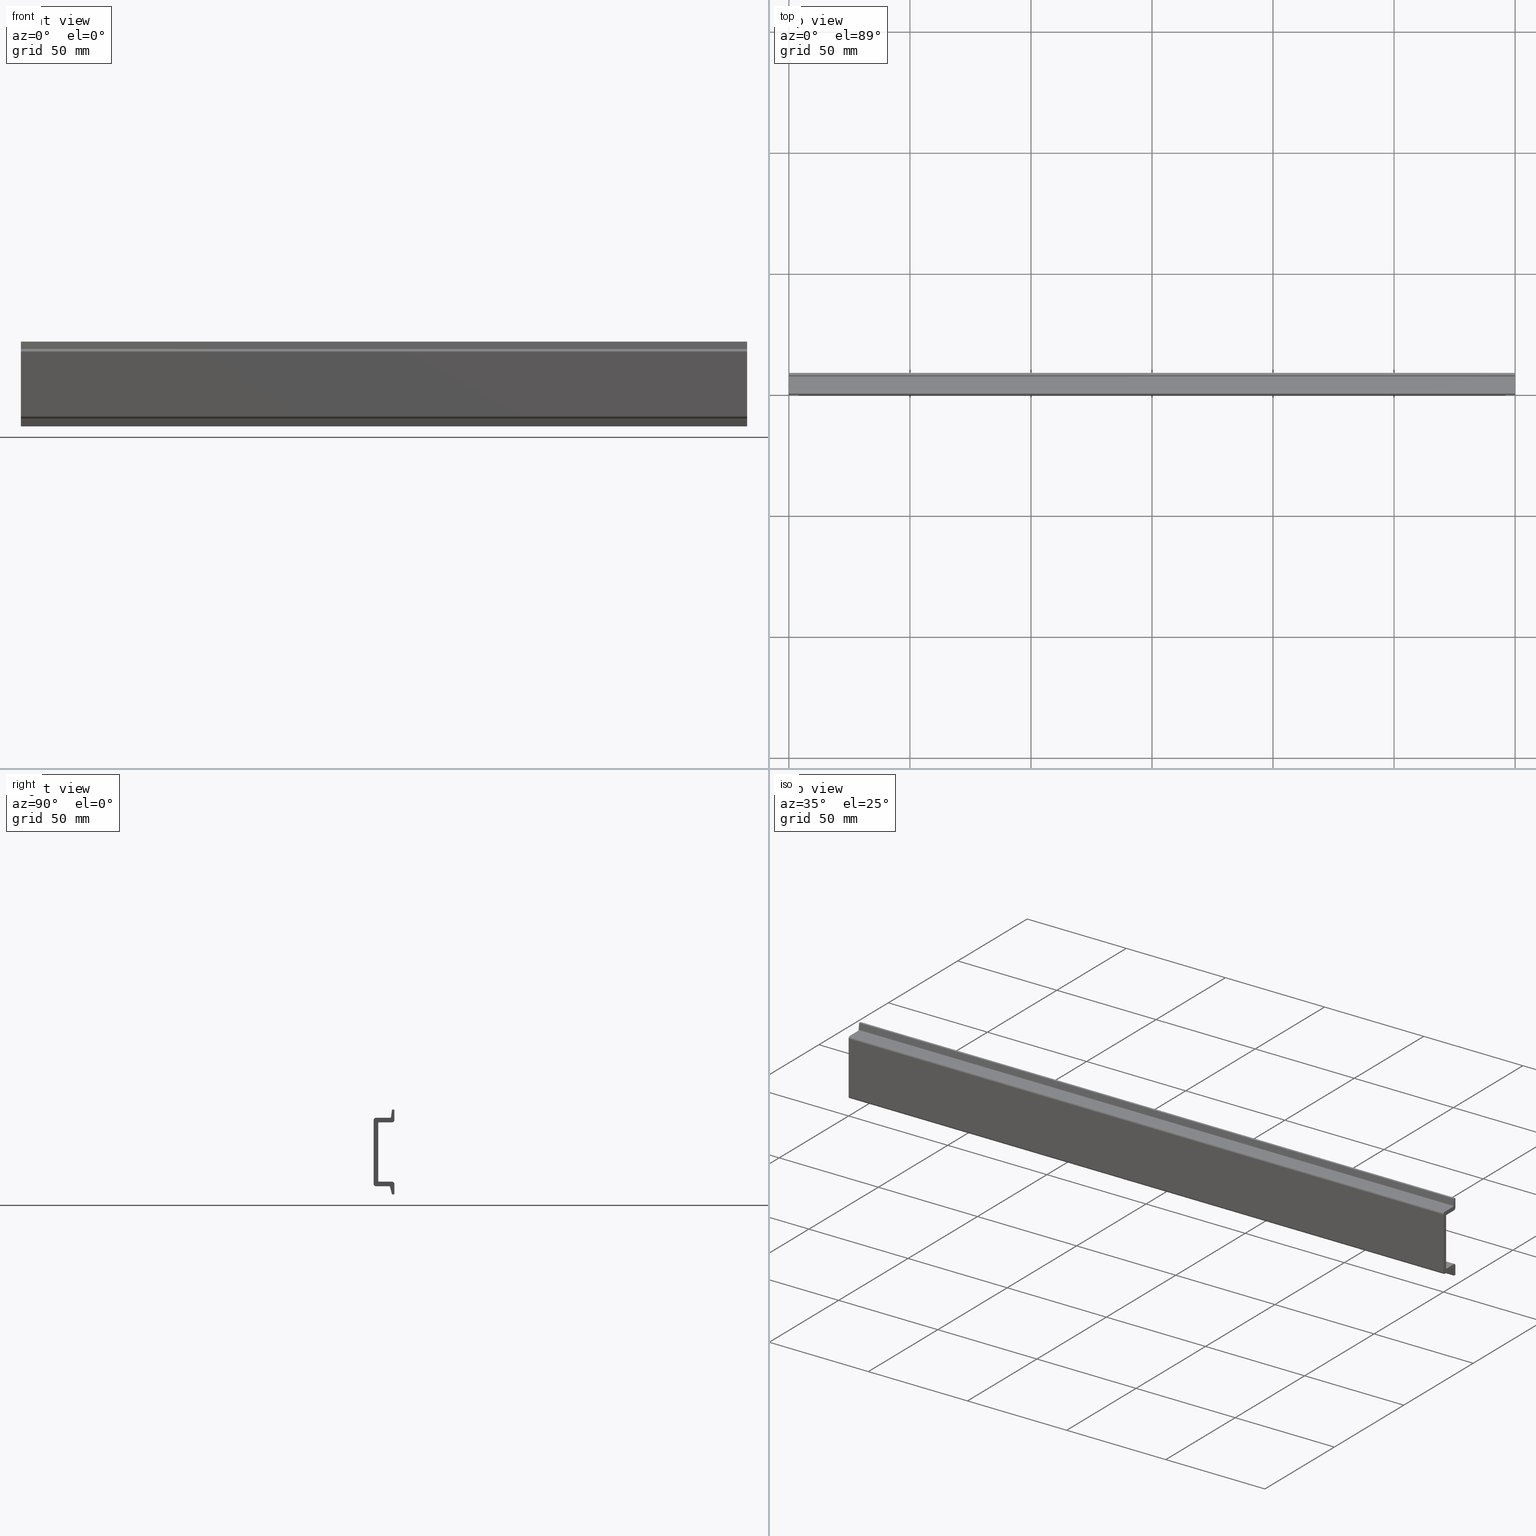
[diagram: canonical four-view strip — front | top / right | iso, engineering-drawing reading convention]
A machine part, canonical four-view strip (front | top / right | iso — engineering-drawing reading convention). The complete STEP part file that produces these views, byte-faithful:
ISO-10303-21;
HEADER;
FILE_DESCRIPTION (( 'STEP AP203' ),
    '1' );
FILE_NAME ('35x7,5 Al�minyum D�z Montaj Ray-30 cm.STEP',
    '2019-03-27T11:44:08',
    ( '' ),
    ( '' ),
    'SwSTEP 2.0',
    'SolidWorks 2011',
    '' );
FILE_SCHEMA (( 'CONFIG_CONTROL_DESIGN' ));
ENDSEC;

DATA;
#1 = PRODUCT ( '35x7,5 Al�minyum D�z Montaj Ray-30 cm', '35x7,5 Al�minyum D�z Montaj Ray-30 cm', '', ( #173 ) ) ;
#2 = APPLICATION_CONTEXT ( 'configuration controlled 3d designs of mechanical parts and assemblies' ) ;
#3 = APPLICATION_CONTEXT ( 'configuration controlled 3d designs of mechanical parts and assemblies' ) ;
#4 = UNCERTAINTY_MEASURE_WITH_UNIT (LENGTH_MEASURE( 1.000000000000000100E-005 ), #175, 'distance_accuracy_value', 'NONE');
#5 = MANIFOLD_SOLID_BREP ( 'Y�kseklik-Ekstr�zyon1', #668 ) ;
#6 = PRODUCT_DEFINITION_SHAPE ( 'NONE', 'NONE',  #54 ) ;
#7 = DESIGN_CONTEXT ( 'detailed design', #3, 'design' ) ;
#8 = EDGE_CURVE ( 'NONE', #206, #232, #247, .T. ) ;
#9 = EDGE_CURVE ( 'NONE', #232, #197, #406, .T. ) ;
#10 = EDGE_CURVE ( 'NONE', #204, #203, #412, .T. ) ;
#11 = EDGE_CURVE ( 'NONE', #231, #229, #374, .T. ) ;
#12 = EDGE_CURVE ( 'NONE', #217, #190, #393, .T. ) ;
#13 = EDGE_CURVE ( 'NONE', #228, #220, #399, .T. ) ;
#14 = EDGE_CURVE ( 'NONE', #204, #233, #671, .T. ) ;
#15 = EDGE_CURVE ( 'NONE', #238, #234, #381, .T. ) ;
#16 = EDGE_CURVE ( 'NONE', #198, #190, #372, .T. ) ;
#17 = EDGE_CURVE ( 'NONE', #238, #231, #388, .T. ) ;
#18 = EDGE_CURVE ( 'NONE', #234, #229, #377, .T. ) ;
#19 = EDGE_CURVE ( 'NONE', #216, #222, #395, .T. ) ;
#20 = EDGE_CURVE ( 'NONE', #198, #228, #389, .T. ) ;
#21 = EDGE_CURVE ( 'NONE', #233, #194, #366, .T. ) ;
#22 = EDGE_CURVE ( 'NONE', #206, #236, #417, .T. ) ;
#23 = EDGE_CURVE ( 'NONE', #191, #203, #413, .T. ) ;
#24 = EDGE_CURVE ( 'NONE', #222, #219, #396, .T. ) ;
#25 = EDGE_CURVE ( 'NONE', #219, #191, #717, .T. ) ;
#26 = EDGE_CURVE ( 'NONE', #202, #204, #458, .T. ) ;
#27 = EDGE_CURVE ( 'NONE', #192, #236, #452, .T. ) ;
#28 = EDGE_CURVE ( 'NONE', #202, #191, #414, .T. ) ;
#29 = EDGE_CURVE ( 'NONE', #197, #235, #726, .T. ) ;
#30 = EDGE_CURVE ( 'NONE', #227, #235, #435, .T. ) ;
#31 = EDGE_CURVE ( 'NONE', #205, #217, #416, .T. ) ;
#32 = EDGE_CURVE ( 'NONE', #222, #202, #719, .T. ) ;
#33 = EDGE_CURVE ( 'NONE', #235, #221, #428, .T. ) ;
#34 = ADVANCED_FACE ( 'NONE', ( #454 ), #419, .F. ) ;
#35 = EDGE_CURVE ( 'NONE', #194, #206, #424, .T. ) ;
#36 = EDGE_CURVE ( 'NONE', #205, #198, #433, .T. ) ;
#37 = ADVANCED_FACE ( 'NONE', ( #448 ), #492, .T. ) ;
#38 = EDGE_CURVE ( 'NONE', #231, #216, #731, .T. ) ;
#39 = EDGE_CURVE ( 'NONE', #236, #197, #503, .T. ) ;
#40 = EDGE_CURVE ( 'NONE', #228, #238, #682, .T. ) ;
#41 = EDGE_CURVE ( 'NONE', #190, #220, #459, .T. ) ;
#42 = EDGE_CURVE ( 'NONE', #194, #192, #491, .T. ) ;
#43 = EDGE_CURVE ( 'NONE', #229, #230, #732, .T. ) ;
#44 = EDGE_CURVE ( 'NONE', #230, #219, #465, .T. ) ;
#45 = ADVANCED_FACE ( 'NONE', ( #467 ), #473, .F. ) ;
#46 = EDGE_CURVE ( 'NONE', #218, #192, #480, .T. ) ;
#47 = ADVANCED_FACE ( 'NONE', ( #478 ), #481, .T. ) ;
#48 = EDGE_CURVE ( 'NONE', #220, #234, #684, .T. ) ;
#49 = EDGE_CURVE ( 'NONE', #216, #230, #477, .T. ) ;
#50 = EDGE_CURVE ( 'NONE', #232, #227, #688, .T. ) ;
#51 = EDGE_CURVE ( 'NONE', #233, #218, #484, .T. ) ;
#52 = ADVANCED_FACE ( 'NONE', ( #529 ), #506, .F. ) ;
#53 = EDGE_CURVE ( 'NONE', #203, #218, #704, .T. ) ;
#54 = PRODUCT_DEFINITION ( 'Bilinmeyen', '', #754, #7 ) ;
#55 = EDGE_CURVE ( 'NONE', #212, #224, #538, .T. ) ;
#56 = APPROVAL ( #179, 'BEL�RT�LMEM��' ) ;
#57 = EDGE_CURVE ( 'NONE', #207, #225, #507, .T. ) ;
#58 = CC_DESIGN_DATE_AND_TIME_ASSIGNMENT ( #172, #162, ( #54 ) ) ;
#59 = CC_DESIGN_PERSON_AND_ORGANIZATION_ASSIGNMENT ( #151, #152, ( #754 ) ) ;
#60 = EDGE_CURVE ( 'NONE', #211, #207, #527, .T. ) ;
#61 = EDGE_CURVE ( 'NONE', #224, #217, #521, .T. ) ;
#62 = ADVANCED_FACE ( 'NONE', ( #547 ), #526, .T. ) ;
#63 = EDGE_CURVE ( 'NONE', #212, #205, #550, .T. ) ;
#64 = ADVANCED_FACE ( 'NONE', ( #533 ), #552, .F. ) ;
#65 = ADVANCED_FACE ( 'NONE', ( #522 ), #516, .T. ) ;
#66 = ADVANCED_FACE ( 'NONE', ( #546 ), #543, .F. ) ;
#67 = EDGE_CURVE ( 'NONE', #237, #208, #553, .T. ) ;
#68 = EDGE_CURVE ( 'NONE', #213, #208, #574, .T. ) ;
#69 = ADVANCED_FACE ( 'NONE', ( #555 ), #554, .F. ) ;
#70 = ADVANCED_FACE ( 'NONE', ( #558 ), #576, .F. ) ;
#71 = ADVANCED_FACE ( 'NONE', ( #584 ), #579, .F. ) ;
#72 = ADVANCED_FACE ( 'NONE', ( #581 ), #577, .F. ) ;
#73 = EDGE_CURVE ( 'NONE', #209, #212, #768, .T. ) ;
#74 = ADVANCED_FACE ( 'NONE', ( #565 ), #556, .F. ) ;
#75 = EDGE_CURVE ( 'NONE', #213, #211, #764, .T. ) ;
#76 = EDGE_CURVE ( 'NONE', #211, #209, #594, .T. ) ;
#77 = ADVANCED_FACE ( 'NONE', ( #598 ), #560, .F. ) ;
#78 = CC_DESIGN_PERSON_AND_ORGANIZATION_ASSIGNMENT ( #156, #159, ( #1 ) ) ;
#79 = CC_DESIGN_PERSON_AND_ORGANIZATION_ASSIGNMENT ( #141, #169, ( #54 ) ) ;
#80 = EDGE_CURVE ( 'NONE', #225, #224, #739, .T. ) ;
#81 = EDGE_CURVE ( 'NONE', #210, #213, #643, .T. ) ;
#82 = EDGE_CURVE ( 'NONE', #227, #223, #641, .T. ) ;
#83 = ADVANCED_FACE ( 'NONE', ( #563 ), #627, .F. ) ;
#84 = EDGE_CURVE ( 'NONE', #209, #225, #624, .T. ) ;
#85 = APPROVAL ( #143, 'BEL�RT�LMEM��' ) ;
#86 = CC_DESIGN_PERSON_AND_ORGANIZATION_ASSIGNMENT ( #149, #150, ( #754 ) ) ;
#87 = ADVANCED_FACE ( 'NONE', ( #626 ), #625, .F. ) ;
#88 = EDGE_CURVE ( 'NONE', #210, #237, #619, .T. ) ;
#89 = ADVANCED_FACE ( 'NONE', ( #611 ), #605, .T. ) ;
#90 = EDGE_CURVE ( 'NONE', #223, #221, #603, .T. ) ;
#91 = EDGE_CURVE ( 'NONE', #221, #237, #763, .T. ) ;
#92 = ADVANCED_FACE ( 'NONE', ( #650 ), #630, .F. ) ;
#93 = ADVANCED_FACE ( 'NONE', ( #632 ), #601, .F. ) ;
#94 = ADVANCED_FACE ( 'NONE', ( #610 ), #615, .F. ) ;
#95 = ADVANCED_FACE ( 'NONE', ( #618 ), #651, .F. ) ;
#96 = EDGE_CURVE ( 'NONE', #223, #210, #760, .T. ) ;
#97 = EDGE_CURVE ( 'NONE', #208, #207, #756, .T. ) ;
#98 = CC_DESIGN_DATE_AND_TIME_ASSIGNMENT ( #185, #187, ( #748 ) ) ;
#99 = CC_DESIGN_PERSON_AND_ORGANIZATION_ASSIGNMENT ( #154, #161, ( #748 ) ) ;
#100 = PRODUCT_RELATED_PRODUCT_CATEGORY ( 'detail', '', ( #1 ) ) ;
#101 = APPROVAL ( #188, 'BEL�RT�LMEM��' ) ;
#102 = CARTESIAN_POINT ( 'NONE',  ( 0.0000000000000000000, 7.599999999999829100, -4.350000000000076000 ) ) ;
#103 = CARTESIAN_POINT ( 'NONE',  ( 300.0000000000000000, -1.110223024625156500E-013, 26.29999999999999000 ) ) ;
#104 = CARTESIAN_POINT ( 'NONE',  ( 300.0000000000000000, 8.599999999999496900, 30.64999999999984200 ) ) ;
#105 = CARTESIAN_POINT ( 'NONE',  ( 300.0000000000000000, 8.599999999999496900, 26.39999999999975700 ) ) ;
#106 = CARTESIAN_POINT ( 'NONE',  ( 0.0000000000000000000, 8.599999999999496900, 30.64999999999984200 ) ) ;
#107 = CARTESIAN_POINT ( 'NONE',  ( 0.0000000000000000000, 2.199999999999979700, 0.8999999999998453700 ) ) ;
#108 = CARTESIAN_POINT ( 'NONE',  ( 0.0000000000000000000, 8.599999999999663900, -0.1000000000002111000 ) ) ;
#109 = CARTESIAN_POINT ( 'NONE',  ( 300.0000000000000000, 1.899999999999901800, 25.09999999999967800 ) ) ;
#110 = CARTESIAN_POINT ( 'NONE',  ( 300.0000000000000000, -5.551115123125782700E-014, 1.836970198720929400E-016 ) ) ;
#111 = CARTESIAN_POINT ( 'NONE',  ( 0.0000000000000000000, 8.599999999999496900, 26.39999999999975700 ) ) ;
#112 = CARTESIAN_POINT ( 'NONE',  ( 300.0000000000000000, 7.599999999999607100, 0.8999999999999008800 ) ) ;
#113 = CARTESIAN_POINT ( 'NONE',  ( 300.0000000000000000, 7.227162839129873900, 27.73653245076380400 ) ) ;
#114 = CARTESIAN_POINT ( 'NONE',  ( 0.0000000000000000000, 0.9999999999998900900, 27.29999999999993700 ) ) ;
#115 = CARTESIAN_POINT ( 'NONE',  ( 0.0000000000000000000, -1.110223024625156500E-013, 26.29999999999999000 ) ) ;
#116 = CARTESIAN_POINT ( 'NONE',  ( 300.0000000000000000, 8.599999999999663900, -0.1000000000002111000 ) ) ;
#117 = CARTESIAN_POINT ( 'NONE',  ( 300.0000000000000000, 8.599999999999607100, -4.350000000000076000 ) ) ;
#118 = CARTESIAN_POINT ( 'NONE',  ( 0.0000000000000000000, 7.227162839129873900, 27.73653245076380400 ) ) ;
#119 = CARTESIAN_POINT ( 'NONE',  ( 0.0000000000000000000, 7.599999999999496000, 25.39999999999981000 ) ) ;
#120 = CARTESIAN_POINT ( 'NONE',  ( 300.0000000000000000, 6.784593068918543000, -1.224273430855515900 ) ) ;
#121 = CARTESIAN_POINT ( 'NONE',  ( 300.0000000000000000, 1.899999999999901800, 1.199999999999867800 ) ) ;
#122 = CARTESIAN_POINT ( 'NONE',  ( 300.0000000000000000, 2.199999999999868700, 25.39999999999986700 ) ) ;
#123 = CARTESIAN_POINT ( 'NONE',  ( 0.0000000000000000000, 6.731207326816646100, 27.29999999999988000 ) ) ;
#124 = CARTESIAN_POINT ( 'NONE',  ( 0.0000000000000000000, 7.599999999999607100, 0.8999999999999008800 ) ) ;
#125 = CARTESIAN_POINT ( 'NONE',  ( 300.0000000000000000, 0.9999999999998900900, 27.29999999999993700 ) ) ;
#126 = CARTESIAN_POINT ( 'NONE',  ( 0.0000000000000000000, 2.199999999999868700, 25.39999999999986700 ) ) ;
#127 = CARTESIAN_POINT ( 'NONE',  ( 0.0000000000000000000, 8.599999999999607100, -4.350000000000076000 ) ) ;
#128 = CARTESIAN_POINT ( 'NONE',  ( 0.0000000000000000000, 1.899999999999901800, 1.199999999999867800 ) ) ;
#129 = DIRECTION ( 'NONE',  ( 0.0000000000000000000, 0.0000000000000000000, -1.000000000000000000 ) ) ;
#130 = CARTESIAN_POINT ( 'NONE',  ( 300.0000000000000000, 6.731207326816646100, 27.29999999999988000 ) ) ;
#131 = CARTESIAN_POINT ( 'NONE',  ( 0.0000000000000000000, 0.0000000000000000000, 0.0000000000000000000 ) ) ;
#132 = CARTESIAN_POINT ( 'NONE',  ( 0.0000000000000000000, 6.784593068918543000, -1.224273430855515900 ) ) ;
#133 = CARTESIAN_POINT ( 'NONE',  ( 300.0000000000000000, 2.199999999999979700, 0.8999999999998453700 ) ) ;
#134 = DIRECTION ( 'NONE',  ( -1.000000000000000000, -0.0000000000000000000, -0.0000000000000000000 ) ) ;
#135 = CARTESIAN_POINT ( 'NONE',  ( 300.0000000000000000, 0.9999999999998898700, -0.9999999999998898700 ) ) ;
#136 = CARTESIAN_POINT ( 'NONE',  ( 300.0000000000000000, 6.494307887199402000, -0.9999999999997712900 ) ) ;
#137 = CARTESIAN_POINT ( 'NONE',  ( 300.0000000000000000, 7.599999999999496000, 25.39999999999981000 ) ) ;
#138 = CARTESIAN_POINT ( 'NONE',  ( 0.0000000000000000000, 1.899999999999901800, 25.09999999999967800 ) ) ;
#139 = CARTESIAN_POINT ( 'NONE',  ( 0.0000000000000000000, -5.551115123125782700E-014, 1.836970198720929400E-016 ) ) ;
#140 = CALENDAR_DATE ( 2019, 27, 3 ) ;
#141 = PERSON_AND_ORGANIZATION ( #664, #740 ) ;
#142 = CALENDAR_DATE ( 2019, 27, 3 ) ;
#143 = APPROVAL_STATUS ( 'not_yet_approved' ) ;
#144 = COORDINATED_UNIVERSAL_TIME_OFFSET ( 3, 0, .AHEAD. ) ;
#145 = APPROVAL_DATE_TIME ( #158, #56 ) ;
#146 = APPROVAL_ROLE ( '' ) ;
#147 = CALENDAR_DATE ( 2019, 27, 3 ) ;
#148 = APPROVAL_DATE_TIME ( #171, #85 ) ;
#149 = PERSON_AND_ORGANIZATION ( #664, #740 ) ;
#150 = PERSON_AND_ORGANIZATION_ROLE ( 'creator' ) ;
#151 = PERSON_AND_ORGANIZATION ( #664, #740 ) ;
#152 = PERSON_AND_ORGANIZATION_ROLE ( 'design_supplier' ) ;
#153 = SECURITY_CLASSIFICATION_LEVEL ( 'unclassified' ) ;
#154 = PERSON_AND_ORGANIZATION ( #664, #740 ) ;
#155 = COORDINATED_UNIVERSAL_TIME_OFFSET ( 3, 0, .AHEAD. ) ;
#156 = PERSON_AND_ORGANIZATION ( #664, #740 ) ;
#157 = PERSON_AND_ORGANIZATION ( #664, #740 ) ;
#158 = DATE_AND_TIME ( #142, #744 ) ;
#159 = PERSON_AND_ORGANIZATION_ROLE ( 'design_owner' ) ;
#160 = COORDINATED_UNIVERSAL_TIME_OFFSET ( 3, 0, .AHEAD. ) ;
#161 = PERSON_AND_ORGANIZATION_ROLE ( 'classification_officer' ) ;
#162 = DATE_TIME_ROLE ( 'creation_date' ) ;
#163 = COORDINATED_UNIVERSAL_TIME_OFFSET ( 3, 0, .AHEAD. ) ;
#164 = PERSON_AND_ORGANIZATION ( #664, #740 ) ;
#165 = CALENDAR_DATE ( 2019, 27, 3 ) ;
#166 = APPROVAL_ROLE ( '' ) ;
#167 = APPLICATION_PROTOCOL_DEFINITION ( 'international standard', 'config_control_design', 1994, #3 ) ;
#168 = DIRECTION ( 'NONE',  ( 1.000000000000000000, 0.0000000000000000000, 0.0000000000000000000 ) ) ;
#169 = PERSON_AND_ORGANIZATION_ROLE ( 'creator' ) ;
#170 =( NAMED_UNIT ( * ) SI_UNIT ( $, .STERADIAN. ) SOLID_ANGLE_UNIT ( ) );
#171 = DATE_AND_TIME ( #147, #766 ) ;
#172 = DATE_AND_TIME ( #140, #758 ) ;
#173 = MECHANICAL_CONTEXT ( 'NONE', #2, 'mechanical' ) ;
#174 =( NAMED_UNIT ( * ) PLANE_ANGLE_UNIT ( ) SI_UNIT ( $, .RADIAN. ) );
#175 =( LENGTH_UNIT ( ) NAMED_UNIT ( * ) SI_UNIT ( .MILLI., .METRE. ) );
#176 = DIRECTION ( 'NONE',  ( 0.0000000000000000000, 0.0000000000000000000, 1.000000000000000000 ) ) ;
#177 = SHAPE_DEFINITION_REPRESENTATION ( #6, #665 ) ;
#178 = APPLICATION_PROTOCOL_DEFINITION ( 'international standard', 'config_control_design', 1994, #2 ) ;
#179 = APPROVAL_STATUS ( 'not_yet_approved' ) ;
#180 = APPROVAL_ROLE ( '' ) ;
#181 = PERSON_AND_ORGANIZATION ( #664, #740 ) ;
#182 = DATE_AND_TIME ( #183, #750 ) ;
#183 = CALENDAR_DATE ( 2019, 27, 3 ) ;
#184 = COORDINATED_UNIVERSAL_TIME_OFFSET ( 3, 0, .AHEAD. ) ;
#185 = DATE_AND_TIME ( #165, #761 ) ;
#186 = APPROVAL_DATE_TIME ( #182, #101 ) ;
#187 = DATE_TIME_ROLE ( 'classification_date' ) ;
#188 = APPROVAL_STATUS ( 'not_yet_approved' ) ;
#189 = EDGE_LOOP ( 'NONE', ( #298, #280, #268, #272 ) ) ;
#190 = VERTEX_POINT ( 'NONE', #661 ) ;
#191 = VERTEX_POINT ( 'NONE', #663 ) ;
#192 = VERTEX_POINT ( 'NONE', #102 ) ;
#193 = EDGE_LOOP ( 'NONE', ( #250, #293, #299, #239 ) ) ;
#194 = VERTEX_POINT ( 'NONE', #655 ) ;
#195 = EDGE_LOOP ( 'NONE', ( #278, #248, #259, #270 ) ) ;
#196 = EDGE_LOOP ( 'NONE', ( #267, #254, #287, #261 ) ) ;
#197 = VERTEX_POINT ( 'NONE', #108 ) ;
#198 = VERTEX_POINT ( 'NONE', #658 ) ;
#199 = EDGE_LOOP ( 'NONE', ( #279, #353, #253, #341 ) ) ;
#200 = EDGE_LOOP ( 'NONE', ( #269, #271, #289, #255 ) ) ;
#201 = EDGE_LOOP ( 'NONE', ( #252, #316, #365, #364 ) ) ;
#202 = VERTEX_POINT ( 'NONE', #135 ) ;
#203 = VERTEX_POINT ( 'NONE', #662 ) ;
#204 = VERTEX_POINT ( 'NONE', #136 ) ;
#205 = VERTEX_POINT ( 'NONE', #104 ) ;
#206 = VERTEX_POINT ( 'NONE', #117 ) ;
#207 = VERTEX_POINT ( 'NONE', #126 ) ;
#208 = VERTEX_POINT ( 'NONE', #138 ) ;
#209 = VERTEX_POINT ( 'NONE', #137 ) ;
#210 = VERTEX_POINT ( 'NONE', #121 ) ;
#211 = VERTEX_POINT ( 'NONE', #122 ) ;
#212 = VERTEX_POINT ( 'NONE', #105 ) ;
#213 = VERTEX_POINT ( 'NONE', #109 ) ;
#214 = EDGE_LOOP ( 'NONE', ( #304, #327, #303, #256 ) ) ;
#215 = EDGE_LOOP ( 'NONE', ( #358, #257, #308, #251 ) ) ;
#216 = VERTEX_POINT ( 'NONE', #103 ) ;
#217 = VERTEX_POINT ( 'NONE', #106 ) ;
#218 = VERTEX_POINT ( 'NONE', #132 ) ;
#219 = VERTEX_POINT ( 'NONE', #139 ) ;
#220 = VERTEX_POINT ( 'NONE', #118 ) ;
#221 = VERTEX_POINT ( 'NONE', #107 ) ;
#222 = VERTEX_POINT ( 'NONE', #110 ) ;
#223 = VERTEX_POINT ( 'NONE', #133 ) ;
#224 = VERTEX_POINT ( 'NONE', #111 ) ;
#225 = VERTEX_POINT ( 'NONE', #119 ) ;
#226 = EDGE_LOOP ( 'NONE', ( #241, #290, #249, #266 ) ) ;
#227 = VERTEX_POINT ( 'NONE', #112 ) ;
#228 = VERTEX_POINT ( 'NONE', #113 ) ;
#229 = VERTEX_POINT ( 'NONE', #114 ) ;
#230 = VERTEX_POINT ( 'NONE', #115 ) ;
#231 = VERTEX_POINT ( 'NONE', #125 ) ;
#232 = VERTEX_POINT ( 'NONE', #116 ) ;
#233 = VERTEX_POINT ( 'NONE', #120 ) ;
#234 = VERTEX_POINT ( 'NONE', #123 ) ;
#235 = VERTEX_POINT ( 'NONE', #124 ) ;
#236 = VERTEX_POINT ( 'NONE', #127 ) ;
#237 = VERTEX_POINT ( 'NONE', #128 ) ;
#238 = VERTEX_POINT ( 'NONE', #130 ) ;
#239 = ORIENTED_EDGE ( 'NONE', *, *, #15, .T. ) ;
#240 = EDGE_LOOP ( 'NONE', ( #306, #275, #277, #295 ) ) ;
#241 = ORIENTED_EDGE ( 'NONE', *, *, #48, .T. ) ;
#242 = EDGE_LOOP ( 'NONE', ( #363, #300, #263, #294 ) ) ;
#243 = EDGE_LOOP ( 'NONE', ( #344, #349, #324, #403, #326, #343, #355, #337, #314, #318, #354, #352, #367, #351, #332, #338, #329, #334, #340, #325 ) ) ;
#244 = EDGE_LOOP ( 'NONE', ( #284, #285, #281, #331 ) ) ;
#245 = EDGE_LOOP ( 'NONE', ( #317, #273, #276, #274 ) ) ;
#246 = CARTESIAN_POINT ( 'NONE',  ( 300.0000000000000000, 8.599999999999607100, -0.1000000000002110300 ) ) ;
#247 = LINE ( 'NONE', #246, #670 ) ;
#248 = ORIENTED_EDGE ( 'NONE', *, *, #16, .F. ) ;
#249 = ORIENTED_EDGE ( 'NONE', *, *, #40, .F. ) ;
#250 = ORIENTED_EDGE ( 'NONE', *, *, #18, .T. ) ;
#251 = ORIENTED_EDGE ( 'NONE', *, *, #10, .T. ) ;
#252 = ORIENTED_EDGE ( 'NONE', *, *, #80, .T. ) ;
#253 = ORIENTED_EDGE ( 'NONE', *, *, #32, .F. ) ;
#254 = ORIENTED_EDGE ( 'NONE', *, *, #13, .F. ) ;
#255 = ORIENTED_EDGE ( 'NONE', *, *, #11, .T. ) ;
#256 = ORIENTED_EDGE ( 'NONE', *, *, #28, .T. ) ;
#257 = ORIENTED_EDGE ( 'NONE', *, *, #51, .F. ) ;
#258 = ORIENTED_EDGE ( 'NONE', *, *, #60, .T. ) ;
#259 = ORIENTED_EDGE ( 'NONE', *, *, #36, .F. ) ;
#260 = ORIENTED_EDGE ( 'NONE', *, *, #42, .F. ) ;
#261 = ORIENTED_EDGE ( 'NONE', *, *, #16, .T. ) ;
#262 = ORIENTED_EDGE ( 'NONE', *, *, #90, .F. ) ;
#263 = ORIENTED_EDGE ( 'NONE', *, *, #96, .F. ) ;
#264 = ORIENTED_EDGE ( 'NONE', *, *, #50, .F. ) ;
#265 = DIRECTION ( 'NONE',  ( -0.0000000000000000000, -0.0000000000000000000, 1.000000000000000000 ) ) ;
#266 = ORIENTED_EDGE ( 'NONE', *, *, #13, .T. ) ;
#267 = ORIENTED_EDGE ( 'NONE', *, *, #41, .T. ) ;
#268 = ORIENTED_EDGE ( 'NONE', *, *, #19, .F. ) ;
#269 = ORIENTED_EDGE ( 'NONE', *, *, #43, .T. ) ;
#270 = ORIENTED_EDGE ( 'NONE', *, *, #31, .T. ) ;
#271 = ORIENTED_EDGE ( 'NONE', *, *, #49, .F. ) ;
#272 = ORIENTED_EDGE ( 'NONE', *, *, #49, .T. ) ;
#273 = ORIENTED_EDGE ( 'NONE', *, *, #9, .F. ) ;
#274 = ORIENTED_EDGE ( 'NONE', *, *, #22, .T. ) ;
#275 = ORIENTED_EDGE ( 'NONE', *, *, #60, .F. ) ;
#276 = ORIENTED_EDGE ( 'NONE', *, *, #8, .F. ) ;
#277 = ORIENTED_EDGE ( 'NONE', *, *, #75, .F. ) ;
#278 = ORIENTED_EDGE ( 'NONE', *, *, #12, .T. ) ;
#279 = ORIENTED_EDGE ( 'NONE', *, *, #25, .T. ) ;
#280 = ORIENTED_EDGE ( 'NONE', *, *, #24, .F. ) ;
#281 = ORIENTED_EDGE ( 'NONE', *, *, #81, .F. ) ;
#282 = EDGE_LOOP ( 'NONE', ( #360, #361, #264, #286 ) ) ;
#283 = EDGE_LOOP ( 'NONE', ( #321, #262, #313, #288 ) ) ;
#284 = ORIENTED_EDGE ( 'NONE', *, *, #67, .T. ) ;
#285 = ORIENTED_EDGE ( 'NONE', *, *, #68, .F. ) ;
#286 = ORIENTED_EDGE ( 'NONE', *, *, #9, .T. ) ;
#287 = ORIENTED_EDGE ( 'NONE', *, *, #20, .F. ) ;
#288 = ORIENTED_EDGE ( 'NONE', *, *, #30, .T. ) ;
#289 = ORIENTED_EDGE ( 'NONE', *, *, #38, .F. ) ;
#290 = ORIENTED_EDGE ( 'NONE', *, *, #15, .F. ) ;
#291 = EDGE_LOOP ( 'NONE', ( #347, #260, #357, #350 ) ) ;
#292 = EDGE_LOOP ( 'NONE', ( #359, #307, #302, #322 ) ) ;
#293 = ORIENTED_EDGE ( 'NONE', *, *, #11, .F. ) ;
#294 = ORIENTED_EDGE ( 'NONE', *, *, #90, .T. ) ;
#295 = ORIENTED_EDGE ( 'NONE', *, *, #68, .T. ) ;
#296 = EDGE_LOOP ( 'NONE', ( #319, #348, #342, #258 ) ) ;
#297 = EDGE_LOOP ( 'NONE', ( #328, #305, #335, #309 ) ) ;
#298 = ORIENTED_EDGE ( 'NONE', *, *, #44, .T. ) ;
#299 = ORIENTED_EDGE ( 'NONE', *, *, #17, .F. ) ;
#300 = ORIENTED_EDGE ( 'NONE', *, *, #88, .F. ) ;
#301 = EDGE_LOOP ( 'NONE', ( #315, #310, #362, #311, #345, #312, #320, #336, #330, #339, #380, #390, #410, #323, #333, #384, #356, #346, #368, #401 ) ) ;
#302 = ORIENTED_EDGE ( 'NONE', *, *, #35, .F. ) ;
#303 = ORIENTED_EDGE ( 'NONE', *, *, #26, .F. ) ;
#304 = ORIENTED_EDGE ( 'NONE', *, *, #23, .T. ) ;
#305 = ORIENTED_EDGE ( 'NONE', *, *, #31, .F. ) ;
#306 = ORIENTED_EDGE ( 'NONE', *, *, #97, .T. ) ;
#307 = ORIENTED_EDGE ( 'NONE', *, *, #22, .F. ) ;
#308 = ORIENTED_EDGE ( 'NONE', *, *, #14, .F. ) ;
#309 = ORIENTED_EDGE ( 'NONE', *, *, #55, .T. ) ;
#310 = ORIENTED_EDGE ( 'NONE', *, *, #20, .T. ) ;
#311 = ORIENTED_EDGE ( 'NONE', *, *, #17, .T. ) ;
#312 = ORIENTED_EDGE ( 'NONE', *, *, #19, .T. ) ;
#313 = ORIENTED_EDGE ( 'NONE', *, *, #82, .F. ) ;
#314 = ORIENTED_EDGE ( 'NONE', *, *, #29, .F. ) ;
#315 = ORIENTED_EDGE ( 'NONE', *, *, #36, .T. ) ;
#316 = ORIENTED_EDGE ( 'NONE', *, *, #55, .F. ) ;
#317 = ORIENTED_EDGE ( 'NONE', *, *, #39, .T. ) ;
#318 = ORIENTED_EDGE ( 'NONE', *, *, #39, .F. ) ;
#319 = ORIENTED_EDGE ( 'NONE', *, *, #57, .T. ) ;
#320 = ORIENTED_EDGE ( 'NONE', *, *, #32, .T. ) ;
#321 = ORIENTED_EDGE ( 'NONE', *, *, #33, .T. ) ;
#322 = ORIENTED_EDGE ( 'NONE', *, *, #42, .T. ) ;
#323 = ORIENTED_EDGE ( 'NONE', *, *, #82, .T. ) ;
#324 = ORIENTED_EDGE ( 'NONE', *, *, #80, .F. ) ;
#325 = ORIENTED_EDGE ( 'NONE', *, *, #41, .F. ) ;
#326 = ORIENTED_EDGE ( 'NONE', *, *, #97, .F. ) ;
#327 = ORIENTED_EDGE ( 'NONE', *, *, #10, .F. ) ;
#328 = ORIENTED_EDGE ( 'NONE', *, *, #61, .T. ) ;
#329 = ORIENTED_EDGE ( 'NONE', *, *, #43, .F. ) ;
#330 = ORIENTED_EDGE ( 'NONE', *, *, #14, .T. ) ;
#331 = ORIENTED_EDGE ( 'NONE', *, *, #88, .T. ) ;
#332 = ORIENTED_EDGE ( 'NONE', *, *, #25, .F. ) ;
#333 = ORIENTED_EDGE ( 'NONE', *, *, #96, .T. ) ;
#334 = ORIENTED_EDGE ( 'NONE', *, *, #18, .F. ) ;
#335 = ORIENTED_EDGE ( 'NONE', *, *, #63, .F. ) ;
#336 = ORIENTED_EDGE ( 'NONE', *, *, #26, .T. ) ;
#337 = ORIENTED_EDGE ( 'NONE', *, *, #33, .F. ) ;
#338 = ORIENTED_EDGE ( 'NONE', *, *, #44, .F. ) ;
#339 = ORIENTED_EDGE ( 'NONE', *, *, #21, .T. ) ;
#340 = ORIENTED_EDGE ( 'NONE', *, *, #48, .F. ) ;
#341 = ORIENTED_EDGE ( 'NONE', *, *, #24, .T. ) ;
#342 = ORIENTED_EDGE ( 'NONE', *, *, #76, .F. ) ;
#343 = ORIENTED_EDGE ( 'NONE', *, *, #67, .F. ) ;
#344 = ORIENTED_EDGE ( 'NONE', *, *, #12, .F. ) ;
#345 = ORIENTED_EDGE ( 'NONE', *, *, #38, .T. ) ;
#346 = ORIENTED_EDGE ( 'NONE', *, *, #76, .T. ) ;
#347 = ORIENTED_EDGE ( 'NONE', *, *, #46, .T. ) ;
#348 = ORIENTED_EDGE ( 'NONE', *, *, #84, .F. ) ;
#349 = ORIENTED_EDGE ( 'NONE', *, *, #61, .F. ) ;
#350 = ORIENTED_EDGE ( 'NONE', *, *, #51, .T. ) ;
#351 = ORIENTED_EDGE ( 'NONE', *, *, #23, .F. ) ;
#352 = ORIENTED_EDGE ( 'NONE', *, *, #46, .F. ) ;
#353 = ORIENTED_EDGE ( 'NONE', *, *, #28, .F. ) ;
#354 = ORIENTED_EDGE ( 'NONE', *, *, #27, .F. ) ;
#355 = ORIENTED_EDGE ( 'NONE', *, *, #91, .F. ) ;
#356 = ORIENTED_EDGE ( 'NONE', *, *, #75, .T. ) ;
#357 = ORIENTED_EDGE ( 'NONE', *, *, #21, .F. ) ;
#358 = ORIENTED_EDGE ( 'NONE', *, *, #53, .T. ) ;
#359 = ORIENTED_EDGE ( 'NONE', *, *, #27, .T. ) ;
#360 = ORIENTED_EDGE ( 'NONE', *, *, #29, .T. ) ;
#361 = ORIENTED_EDGE ( 'NONE', *, *, #30, .F. ) ;
#362 = ORIENTED_EDGE ( 'NONE', *, *, #40, .T. ) ;
#363 = ORIENTED_EDGE ( 'NONE', *, *, #91, .T. ) ;
#364 = ORIENTED_EDGE ( 'NONE', *, *, #84, .T. ) ;
#365 = ORIENTED_EDGE ( 'NONE', *, *, #73, .F. ) ;
#366 = LINE ( 'NONE', #404, #724 ) ;
#367 = ORIENTED_EDGE ( 'NONE', *, *, #53, .F. ) ;
#368 = ORIENTED_EDGE ( 'NONE', *, *, #73, .T. ) ;
#369 = CARTESIAN_POINT ( 'NONE',  ( 300.0000000000000000, 8.599999999999663900, -0.1000000000002111000 ) ) ;
#370 = DIRECTION ( 'NONE',  ( -1.000000000000000000, -0.0000000000000000000, -0.0000000000000000000 ) ) ;
#371 = CARTESIAN_POINT ( 'NONE',  ( 300.0000000000000000, 6.494307887199513000, -1.299999999999634800 ) ) ;
#372 = LINE ( 'NONE', #383, #705 ) ;
#373 = DIRECTION ( 'NONE',  ( -1.000000000000000000, -0.0000000000000000000, -0.0000000000000000000 ) ) ;
#374 = LINE ( 'NONE', #392, #673 ) ;
#375 = CARTESIAN_POINT ( 'NONE',  ( 300.0000000000000000, 6.731207326816646100, 27.29999999999988000 ) ) ;
#376 = CARTESIAN_POINT ( 'NONE',  ( 300.0000000000000000, 6.731207326816646100, 27.29999999999988000 ) ) ;
#377 = LINE ( 'NONE', #411, #689 ) ;
#378 = DIRECTION ( 'NONE',  ( -1.000000000000000000, -0.0000000000000000000, -0.0000000000000000000 ) ) ;
#379 = DIRECTION ( 'NONE',  ( -1.000000000000000000, -0.0000000000000000000, -0.0000000000000000000 ) ) ;
#380 = ORIENTED_EDGE ( 'NONE', *, *, #35, .T. ) ;
#381 = LINE ( 'NONE', #375, #674 ) ;
#382 = DIRECTION ( 'NONE',  ( -1.000000000000000000, -0.0000000000000000000, -0.0000000000000000000 ) ) ;
#383 = CARTESIAN_POINT ( 'NONE',  ( 300.0000000000000000, 7.599999999999607100, 30.64999999999984200 ) ) ;
#384 = ORIENTED_EDGE ( 'NONE', *, *, #81, .T. ) ;
#385 = DIRECTION ( 'NONE',  ( 0.0000000000000000000, -1.000000000000000000, 0.0000000000000000000 ) ) ;
#386 = DIRECTION ( 'NONE',  ( 0.0000000000000000000, -1.000000000000000000, 0.0000000000000000000 ) ) ;
#387 = CARTESIAN_POINT ( 'NONE',  ( 300.0000000000000000, -1.110223024625156500E-013, 26.29999999999999000 ) ) ;
#388 = LINE ( 'NONE', #376, #729 ) ;
#389 = LINE ( 'NONE', #397, #680 ) ;
#390 = ORIENTED_EDGE ( 'NONE', *, *, #8, .T. ) ;
#391 = CARTESIAN_POINT ( 'NONE',  ( 300.0000000000000000, 6.494307887199402000, -0.9999999999997712900 ) ) ;
#392 = CARTESIAN_POINT ( 'NONE',  ( 300.0000000000000000, 0.9999999999998900900, 27.29999999999993700 ) ) ;
#393 = LINE ( 'NONE', #407, #666 ) ;
#394 = DIRECTION ( 'NONE',  ( 0.0000000000000000000, -1.000000000000000000, 0.0000000000000000000 ) ) ;
#395 = LINE ( 'NONE', #387, #675 ) ;
#396 = LINE ( 'NONE', #427, #715 ) ;
#397 = CARTESIAN_POINT ( 'NONE',  ( 300.0000000000000000, 7.227162839129941400, 27.73653245076379600 ) ) ;
#398 = DIRECTION ( 'NONE',  ( 0.0000000000000000000, 0.0000000000000000000, -1.000000000000000000 ) ) ;
#399 = LINE ( 'NONE', #405, #667 ) ;
#400 = DIRECTION ( 'NONE',  ( -0.0000000000000000000, -0.1269350984719558600, -0.9919110246266622500 ) ) ;
#401 = ORIENTED_EDGE ( 'NONE', *, *, #63, .T. ) ;
#402 = DIRECTION ( 'NONE',  ( -1.000000000000000000, -0.0000000000000000000, -0.0000000000000000000 ) ) ;
#403 = ORIENTED_EDGE ( 'NONE', *, *, #57, .F. ) ;
#404 = CARTESIAN_POINT ( 'NONE',  ( 300.0000000000000000, 6.784593068918543000, -1.224273430855515900 ) ) ;
#405 = CARTESIAN_POINT ( 'NONE',  ( 300.0000000000000000, 7.227162839129873900, 27.73653245076380400 ) ) ;
#406 = LINE ( 'NONE', #369, #669 ) ;
#407 = CARTESIAN_POINT ( 'NONE',  ( 0.0000000000000000000, 8.599999999999496900, 30.64999999999984200 ) ) ;
#408 = DIRECTION ( 'NONE',  ( -1.000000000000000000, -0.0000000000000000000, -0.0000000000000000000 ) ) ;
#409 = DIRECTION ( 'NONE',  ( 0.0000000000000000000, 0.0000000000000000000, -1.000000000000000000 ) ) ;
#410 = ORIENTED_EDGE ( 'NONE', *, *, #50, .T. ) ;
#411 = CARTESIAN_POINT ( 'NONE',  ( 0.0000000000000000000, 6.731207326816646100, 27.29999999999988000 ) ) ;
#412 = LINE ( 'NONE', #391, #672 ) ;
#413 = LINE ( 'NONE', #437, #725 ) ;
#414 = LINE ( 'NONE', #415, #677 ) ;
#415 = CARTESIAN_POINT ( 'NONE',  ( 300.0000000000000000, 0.9999999999998898700, -0.9999999999998898700 ) ) ;
#416 = LINE ( 'NONE', #418, #697 ) ;
#417 = LINE ( 'NONE', #456, #699 ) ;
#418 = CARTESIAN_POINT ( 'NONE',  ( 300.0000000000000000, 8.599999999999496900, 30.64999999999984200 ) ) ;
#419 = PLANE ( 'NONE',  #721 ) ;
#420 = CARTESIAN_POINT ( 'NONE',  ( 0.0000000000000000000, 7.599999999999607100, 0.8999999999999008800 ) ) ;
#421 = DIRECTION ( 'NONE',  ( 1.000000000000000000, 0.0000000000000000000, 0.0000000000000000000 ) ) ;
#422 = DIRECTION ( 'NONE',  ( 0.0000000000000000000, 0.0000000000000000000, -1.000000000000000000 ) ) ;
#423 = DIRECTION ( 'NONE',  ( 1.000000000000000000, 0.0000000000000000000, 0.0000000000000000000 ) ) ;
#424 = LINE ( 'NONE', #447, #720 ) ;
#425 = DIRECTION ( 'NONE',  ( -1.000000000000000000, -0.0000000000000000000, -0.0000000000000000000 ) ) ;
#426 = DIRECTION ( 'NONE',  ( 0.0000000000000000000, 0.2524218971470307300, -0.9676172723968365900 ) ) ;
#427 = CARTESIAN_POINT ( 'NONE',  ( 300.0000000000000000, -5.551115123125782700E-014, 1.836970198720929400E-016 ) ) ;
#428 = LINE ( 'NONE', #420, #692 ) ;
#429 = DIRECTION ( 'NONE',  ( 1.000000000000000000, 0.0000000000000000000, 0.0000000000000000000 ) ) ;
#430 = DIRECTION ( 'NONE',  ( 0.0000000000000000000, 0.0000000000000000000, -1.000000000000000000 ) ) ;
#431 = DIRECTION ( 'NONE',  ( -1.000000000000000000, -0.0000000000000000000, -0.0000000000000000000 ) ) ;
#432 = CARTESIAN_POINT ( 'NONE',  ( 0.0000000000000000000, 7.599999999999607100, -0.1000000000002110300 ) ) ;
#433 = LINE ( 'NONE', #502, #708 ) ;
#434 = DIRECTION ( 'NONE',  ( -0.0000000000000000000, 1.000000000000000000, -0.0000000000000000000 ) ) ;
#435 = LINE ( 'NONE', #442, #730 ) ;
#436 = DIRECTION ( 'NONE',  ( -1.000000000000000000, -0.0000000000000000000, -0.0000000000000000000 ) ) ;
#437 = CARTESIAN_POINT ( 'NONE',  ( 0.0000000000000000000, 6.494307887199402000, -0.9999999999998898700 ) ) ;
#438 = CARTESIAN_POINT ( 'NONE',  ( 0.0000000000000000000, 0.9999999999998898700, 0.0000000000000000000 ) ) ;
#439 = CARTESIAN_POINT ( 'NONE',  ( 0.0000000000000000000, 8.599999999999607100, -4.350000000000076000 ) ) ;
#440 = CARTESIAN_POINT ( 'NONE',  ( 0.0000000000000000000, 6.731207326816535100, 27.79999999999982700 ) ) ;
#441 = DIRECTION ( 'NONE',  ( 0.0000000000000000000, 0.0000000000000000000, -1.000000000000000000 ) ) ;
#442 = CARTESIAN_POINT ( 'NONE',  ( 300.0000000000000000, 7.599999999999607100, 0.8999999999999008800 ) ) ;
#443 = DIRECTION ( 'NONE',  ( 0.0000000000000000000, 0.0000000000000000000, -1.000000000000000000 ) ) ;
#444 = DIRECTION ( 'NONE',  ( -1.000000000000000000, -0.0000000000000000000, -0.0000000000000000000 ) ) ;
#445 = DIRECTION ( 'NONE',  ( 0.0000000000000000000, -1.000000000000000000, 0.0000000000000000000 ) ) ;
#446 = DIRECTION ( 'NONE',  ( -0.0000000000000000000, 1.000000000000000000, -0.0000000000000000000 ) ) ;
#447 = CARTESIAN_POINT ( 'NONE',  ( 300.0000000000000000, 8.599999999999607100, -4.350000000000076000 ) ) ;
#448 = FACE_OUTER_BOUND ( 'NONE', #301, .T. ) ;
#449 = DIRECTION ( 'NONE',  ( -0.0000000000000000000, 1.000000000000000000, -0.0000000000000000000 ) ) ;
#450 = CARTESIAN_POINT ( 'NONE',  ( 300.0000000000000000, 0.9999999999998898700, 0.0000000000000000000 ) ) ;
#451 = CARTESIAN_POINT ( 'NONE',  ( 300.0000000000000000, 6.494307887199402000, -0.9999999999998898700 ) ) ;
#452 = LINE ( 'NONE', #439, #713 ) ;
#453 = DIRECTION ( 'NONE',  ( 1.000000000000000000, 0.0000000000000000000, 0.0000000000000000000 ) ) ;
#454 = FACE_OUTER_BOUND ( 'NONE', #243, .T. ) ;
#455 = DIRECTION ( 'NONE',  ( -0.0000000000000000000, 1.000000000000000000, -0.0000000000000000000 ) ) ;
#456 = CARTESIAN_POINT ( 'NONE',  ( 300.0000000000000000, 8.599999999999607100, -4.350000000000076000 ) ) ;
#457 = DIRECTION ( 'NONE',  ( -1.000000000000000000, -0.0000000000000000000, -0.0000000000000000000 ) ) ;
#458 = LINE ( 'NONE', #451, #683 ) ;
#459 = LINE ( 'NONE', #493, #685 ) ;
#460 = CARTESIAN_POINT ( 'NONE',  ( 300.0000000000000000, 0.9999999999998898700, 26.29999999999999000 ) ) ;
#461 = DIRECTION ( 'NONE',  ( -1.000000000000000000, -0.0000000000000000000, -0.0000000000000000000 ) ) ;
#462 = CARTESIAN_POINT ( 'NONE',  ( 300.0000000000000000, 6.731207326816535100, 27.79999999999982700 ) ) ;
#463 = DIRECTION ( 'NONE',  ( -1.000000000000000000, -0.0000000000000000000, -0.0000000000000000000 ) ) ;
#464 = DIRECTION ( 'NONE',  ( 1.000000000000000000, 0.0000000000000000000, 0.0000000000000000000 ) ) ;
#465 = LINE ( 'NONE', #489, #703 ) ;
#466 = CARTESIAN_POINT ( 'NONE',  ( 300.0000000000000000, 6.731207326816535100, 27.79999999999982700 ) ) ;
#467 = FACE_OUTER_BOUND ( 'NONE', #297, .T. ) ;
#468 = CARTESIAN_POINT ( 'NONE',  ( 0.0000000000000000000, 0.9999999999998898700, 26.29999999999999000 ) ) ;
#469 = CARTESIAN_POINT ( 'NONE',  ( 300.0000000000000000, 7.599999999999829100, -4.350000000000076000 ) ) ;
#470 = DIRECTION ( 'NONE',  ( 1.000000000000000000, 0.0000000000000000000, 0.0000000000000000000 ) ) ;
#471 = CARTESIAN_POINT ( 'NONE',  ( 0.0000000000000000000, 6.784593068918543000, -1.224273430855515900 ) ) ;
#472 = CARTESIAN_POINT ( 'NONE',  ( 0.0000000000000000000, 6.731207326816535100, 27.79999999999982700 ) ) ;
#473 = PLANE ( 'NONE',  #687 ) ;
#474 = DIRECTION ( 'NONE',  ( 0.0000000000000000000, 0.0000000000000000000, -1.000000000000000000 ) ) ;
#475 = DIRECTION ( 'NONE',  ( 0.0000000000000000000, -0.0000000000000000000, -1.000000000000000000 ) ) ;
#476 = CARTESIAN_POINT ( 'NONE',  ( 300.0000000000000000, 7.599999999999496000, 26.39999999999975700 ) ) ;
#477 = LINE ( 'NONE', #500, #711 ) ;
#478 = FACE_OUTER_BOUND ( 'NONE', #201, .T. ) ;
#479 = DIRECTION ( 'NONE',  ( -1.000000000000000000, -0.0000000000000000000, -0.0000000000000000000 ) ) ;
#480 = LINE ( 'NONE', #471, #707 ) ;
#481 = CYLINDRICAL_SURFACE ( 'NONE', #693, 0.9999999999999453800 ) ;
#482 = DIRECTION ( 'NONE',  ( 0.0000000000000000000, 0.0000000000000000000, 1.000000000000000000 ) ) ;
#483 = DIRECTION ( 'NONE',  ( 0.0000000000000000000, 0.0000000000000000000, -1.000000000000000000 ) ) ;
#484 = LINE ( 'NONE', #498, #694 ) ;
#485 = DIRECTION ( 'NONE',  ( 0.0000000000000000000, 0.0000000000000000000, -1.000000000000000000 ) ) ;
#486 = CARTESIAN_POINT ( 'NONE',  ( 0.0000000000000000000, 8.599999999999607100, -0.1000000000002110300 ) ) ;
#487 = DIRECTION ( 'NONE',  ( 0.0000000000000000000, 0.0000000000000000000, -1.000000000000000000 ) ) ;
#488 = DIRECTION ( 'NONE',  ( -0.0000000000000000000, -0.0000000000000000000, 1.000000000000000000 ) ) ;
#489 = CARTESIAN_POINT ( 'NONE',  ( 0.0000000000000000000, -1.110223024625156500E-013, 26.29999999999999000 ) ) ;
#490 = CARTESIAN_POINT ( 'NONE',  ( 300.0000000000000000, 8.599999999999496900, 30.64999999999984200 ) ) ;
#491 = LINE ( 'NONE', #469, #727 ) ;
#492 = PLANE ( 'NONE',  #728 ) ;
#493 = CARTESIAN_POINT ( 'NONE',  ( 0.0000000000000000000, 7.227162839129941400, 27.73653245076379600 ) ) ;
#494 = DIRECTION ( 'NONE',  ( 0.0000000000000000000, -1.000000000000000000, 0.0000000000000000000 ) ) ;
#495 = DIRECTION ( 'NONE',  ( -0.0000000000000000000, -0.1269350984719558600, -0.9919110246266622500 ) ) ;
#496 = DIRECTION ( 'NONE',  ( 0.0000000000000000000, 0.0000000000000000000, -1.000000000000000000 ) ) ;
#497 = DIRECTION ( 'NONE',  ( -1.000000000000000000, -0.0000000000000000000, -0.0000000000000000000 ) ) ;
#498 = CARTESIAN_POINT ( 'NONE',  ( 300.0000000000000000, 6.784593068918543000, -1.224273430855515900 ) ) ;
#499 = DIRECTION ( 'NONE',  ( 0.0000000000000000000, 0.2524218971470307300, -0.9676172723968365900 ) ) ;
#500 = CARTESIAN_POINT ( 'NONE',  ( 300.0000000000000000, -1.110223024625156500E-013, 26.29999999999999000 ) ) ;
#501 = DIRECTION ( 'NONE',  ( 0.0000000000000000000, 0.0000000000000000000, -1.000000000000000000 ) ) ;
#502 = CARTESIAN_POINT ( 'NONE',  ( 300.0000000000000000, 8.599999999999496900, 30.64999999999984200 ) ) ;
#503 = LINE ( 'NONE', #486, #701 ) ;
#504 = DIRECTION ( 'NONE',  ( 1.000000000000000000, 0.0000000000000000000, 0.0000000000000000000 ) ) ;
#505 = DIRECTION ( 'NONE',  ( 0.0000000000000000000, -1.000000000000000000, 0.0000000000000000000 ) ) ;
#506 = CYLINDRICAL_SURFACE ( 'NONE', #698, 0.5000000000000143200 ) ;
#507 = LINE ( 'NONE', #531, #695 ) ;
#508 = DIRECTION ( 'NONE',  ( -1.000000000000000000, -0.0000000000000000000, -0.0000000000000000000 ) ) ;
#509 = CARTESIAN_POINT ( 'NONE',  ( 300.0000000000000000, 7.599999999999607100, -0.1000000000002110300 ) ) ;
#510 = DIRECTION ( 'NONE',  ( 0.0000000000000000000, 0.0000000000000000000, -1.000000000000000000 ) ) ;
#511 = CARTESIAN_POINT ( 'NONE',  ( 0.0000000000000000000, 8.599999999999496900, 30.64999999999984200 ) ) ;
#512 = DIRECTION ( 'NONE',  ( -0.0000000000000000000, -0.0000000000000000000, 1.000000000000000000 ) ) ;
#513 = DIRECTION ( 'NONE',  ( -1.000000000000000000, -0.0000000000000000000, -0.0000000000000000000 ) ) ;
#514 = DIRECTION ( 'NONE',  ( -0.0000000000000000000, 1.000000000000000000, -0.0000000000000000000 ) ) ;
#515 = DIRECTION ( 'NONE',  ( 0.0000000000000000000, -0.0000000000000000000, 1.000000000000000000 ) ) ;
#516 = CYLINDRICAL_SURFACE ( 'NONE', #722, 1.000000000000056400 ) ;
#517 = DIRECTION ( 'NONE',  ( 0.0000000000000000000, 0.0000000000000000000, 1.000000000000000000 ) ) ;
#518 = CARTESIAN_POINT ( 'NONE',  ( 300.0000000000000000, 2.199999999999868700, 25.39999999999986700 ) ) ;
#519 = CARTESIAN_POINT ( 'NONE',  ( 300.0000000000000000, 8.599999999999607100, -4.350000000000076000 ) ) ;
#520 = DIRECTION ( 'NONE',  ( -0.0000000000000000000, 0.0000000000000000000, 1.000000000000000000 ) ) ;
#521 = LINE ( 'NONE', #511, #710 ) ;
#522 = FACE_OUTER_BOUND ( 'NONE', #282, .T. ) ;
#523 = CARTESIAN_POINT ( 'NONE',  ( 300.0000000000000000, 8.599999999999496900, 26.39999999999975700 ) ) ;
#524 = DIRECTION ( 'NONE',  ( 0.0000000000000000000, 0.0000000000000000000, 1.000000000000000000 ) ) ;
#525 = DIRECTION ( 'NONE',  ( 1.000000000000000000, 0.0000000000000000000, 0.0000000000000000000 ) ) ;
#526 = CYLINDRICAL_SURFACE ( 'NONE', #702, 0.9999999999999453800 ) ;
#527 = LINE ( 'NONE', #518, #696 ) ;
#528 = CARTESIAN_POINT ( 'NONE',  ( 300.0000000000000000, 7.599999999999607100, -0.1000000000002110300 ) ) ;
#529 = FACE_OUTER_BOUND ( 'NONE', #226, .T. ) ;
#530 = DIRECTION ( 'NONE',  ( -1.000000000000000000, -0.0000000000000000000, -0.0000000000000000000 ) ) ;
#531 = CARTESIAN_POINT ( 'NONE',  ( 0.0000000000000000000, 7.599999999999496000, 25.39999999999986700 ) ) ;
#532 = CARTESIAN_POINT ( 'NONE',  ( 300.0000000000000000, 0.9999999999998898700, 26.29999999999999000 ) ) ;
#533 = FACE_OUTER_BOUND ( 'NONE', #189, .T. ) ;
#534 = DIRECTION ( 'NONE',  ( -0.0000000000000000000, 1.000000000000000000, 0.0000000000000000000 ) ) ;
#535 = CARTESIAN_POINT ( 'NONE',  ( 300.0000000000000000, 6.731207326816535100, 27.79999999999982700 ) ) ;
#536 = CARTESIAN_POINT ( 'NONE',  ( 0.0000000000000000000, 6.494307887199513000, -1.299999999999634800 ) ) ;
#537 = DIRECTION ( 'NONE',  ( 0.0000000000000000000, 0.0000000000000000000, -1.000000000000000000 ) ) ;
#538 = LINE ( 'NONE', #523, #690 ) ;
#539 = DIRECTION ( 'NONE',  ( -1.000000000000000000, -0.0000000000000000000, -0.0000000000000000000 ) ) ;
#540 = DIRECTION ( 'NONE',  ( -1.000000000000000000, -0.0000000000000000000, -0.0000000000000000000 ) ) ;
#541 = CARTESIAN_POINT ( 'NONE',  ( 300.0000000000000000, 8.599999999999496900, 30.64999999999984200 ) ) ;
#542 = CARTESIAN_POINT ( 'NONE',  ( 300.0000000000000000, -1.110223024625156500E-013, 26.29999999999999000 ) ) ;
#543 = PLANE ( 'NONE',  #771 ) ;
#544 = DIRECTION ( 'NONE',  ( -1.000000000000000000, -0.0000000000000000000, -0.0000000000000000000 ) ) ;
#545 = DIRECTION ( 'NONE',  ( 0.0000000000000000000, 0.0000000000000000000, 1.000000000000000000 ) ) ;
#546 = FACE_OUTER_BOUND ( 'NONE', #292, .T. ) ;
#547 = FACE_OUTER_BOUND ( 'NONE', #200, .T. ) ;
#548 = DIRECTION ( 'NONE',  ( -1.000000000000000000, -0.0000000000000000000, -0.0000000000000000000 ) ) ;
#549 = DIRECTION ( 'NONE',  ( -1.000000000000000000, -0.0000000000000000000, -0.0000000000000000000 ) ) ;
#550 = LINE ( 'NONE', #541, #709 ) ;
#551 = DIRECTION ( 'NONE',  ( -0.0000000000000000000, -0.0000000000000000000, 1.000000000000000000 ) ) ;
#552 = PLANE ( 'NONE',  #716 ) ;
#553 = LINE ( 'NONE', #591, #700 ) ;
#554 = PLANE ( 'NONE',  #774 ) ;
#555 = FACE_OUTER_BOUND ( 'NONE', #244, .T. ) ;
#556 = PLANE ( 'NONE',  #775 ) ;
#557 = DIRECTION ( 'NONE',  ( 1.000000000000000000, 0.0000000000000000000, 0.0000000000000000000 ) ) ;
#558 = FACE_OUTER_BOUND ( 'NONE', #245, .T. ) ;
#559 = DIRECTION ( 'NONE',  ( 0.0000000000000000000, 0.0000000000000000000, -1.000000000000000000 ) ) ;
#560 = CYLINDRICAL_SURFACE ( 'NONE', #733, 0.2999999999999669600 ) ;
#561 = DIRECTION ( 'NONE',  ( 0.0000000000000000000, -0.2524218971470307300, 0.9676172723968365900 ) ) ;
#562 = CARTESIAN_POINT ( 'NONE',  ( 300.0000000000000000, 1.899999999999901800, 25.09999999999967800 ) ) ;
#563 = FACE_OUTER_BOUND ( 'NONE', #195, .T. ) ;
#564 = CARTESIAN_POINT ( 'NONE',  ( 300.0000000000000000, 6.784593068918543000, -1.224273430855515900 ) ) ;
#565 = FACE_OUTER_BOUND ( 'NONE', #214, .T. ) ;
#566 = DIRECTION ( 'NONE',  ( 0.0000000000000000000, 0.0000000000000000000, 1.000000000000000000 ) ) ;
#567 = DIRECTION ( 'NONE',  ( 0.0000000000000000000, -1.000000000000000000, 0.0000000000000000000 ) ) ;
#568 = DIRECTION ( 'NONE',  ( -0.0000000000000000000, 0.0000000000000000000, 1.000000000000000000 ) ) ;
#569 = CARTESIAN_POINT ( 'NONE',  ( 300.0000000000000000, 7.599999999999496000, 25.39999999999986700 ) ) ;
#570 = CARTESIAN_POINT ( 'NONE',  ( 300.0000000000000000, 2.199999999999868700, 25.09999999999990200 ) ) ;
#571 = DIRECTION ( 'NONE',  ( -1.000000000000000000, -0.0000000000000000000, -0.0000000000000000000 ) ) ;
#572 = DIRECTION ( 'NONE',  ( -0.0000000000000000000, 1.000000000000000000, -0.0000000000000000000 ) ) ;
#573 = CARTESIAN_POINT ( 'NONE',  ( 300.0000000000000000, 8.599999999999607100, -0.1000000000002110300 ) ) ;
#574 = LINE ( 'NONE', #562, #714 ) ;
#575 = DIRECTION ( 'NONE',  ( 0.0000000000000000000, -0.0000000000000000000, -1.000000000000000000 ) ) ;
#576 = PLANE ( 'NONE',  #738 ) ;
#577 = CYLINDRICAL_SURFACE ( 'NONE', #734, 0.3000000000000224700 ) ;
#578 = DIRECTION ( 'NONE',  ( 0.0000000000000000000, -0.0000000000000000000, -1.000000000000000000 ) ) ;
#579 = PLANE ( 'NONE',  #778 ) ;
#580 = DIRECTION ( 'NONE',  ( -1.000000000000000000, -0.0000000000000000000, -0.0000000000000000000 ) ) ;
#581 = FACE_OUTER_BOUND ( 'NONE', #242, .T. ) ;
#582 = DIRECTION ( 'NONE',  ( 1.000000000000000000, 0.0000000000000000000, 0.0000000000000000000 ) ) ;
#583 = DIRECTION ( 'NONE',  ( 1.000000000000000000, 0.0000000000000000000, 0.0000000000000000000 ) ) ;
#584 = FACE_OUTER_BOUND ( 'NONE', #291, .T. ) ;
#585 = DIRECTION ( 'NONE',  ( -1.000000000000000000, -0.0000000000000000000, -0.0000000000000000000 ) ) ;
#586 = DIRECTION ( 'NONE',  ( -1.000000000000000000, -0.0000000000000000000, -0.0000000000000000000 ) ) ;
#587 = DIRECTION ( 'NONE',  ( -0.0000000000000000000, -0.0000000000000000000, 1.000000000000000000 ) ) ;
#588 = DIRECTION ( 'NONE',  ( 0.0000000000000000000, -1.000000000000000000, 0.0000000000000000000 ) ) ;
#589 = CARTESIAN_POINT ( 'NONE',  ( 300.0000000000000000, 7.599999999999496000, 26.39999999999975700 ) ) ;
#590 = CARTESIAN_POINT ( 'NONE',  ( 300.0000000000000000, 1.899999999999901800, 25.09999999999967800 ) ) ;
#591 = CARTESIAN_POINT ( 'NONE',  ( 0.0000000000000000000, 1.899999999999901800, 25.09999999999967800 ) ) ;
#592 = DIRECTION ( 'NONE',  ( -0.0000000000000000000, 0.9676172723968365900, 0.2524218971470307300 ) ) ;
#593 = CARTESIAN_POINT ( 'NONE',  ( 300.0000000000000000, 2.199999999999979700, 1.199999999999867800 ) ) ;
#594 = LINE ( 'NONE', #569, #735 ) ;
#595 = CARTESIAN_POINT ( 'NONE',  ( 300.0000000000000000, 2.199999999999868700, 25.09999999999990200 ) ) ;
#596 = DIRECTION ( 'NONE',  ( 0.0000000000000000000, 0.0000000000000000000, -1.000000000000000000 ) ) ;
#597 = CARTESIAN_POINT ( 'NONE',  ( 300.0000000000000000, 6.494307887199402000, -0.9999999999998898700 ) ) ;
#598 = FACE_OUTER_BOUND ( 'NONE', #240, .T. ) ;
#599 = DIRECTION ( 'NONE',  ( 0.0000000000000000000, 0.0000000000000000000, 1.000000000000000000 ) ) ;
#600 = CARTESIAN_POINT ( 'NONE',  ( 300.0000000000000000, 7.599999999999607100, 0.8999999999999008800 ) ) ;
#601 = PLANE ( 'NONE',  #765 ) ;
#602 = CARTESIAN_POINT ( 'NONE',  ( 0.0000000000000000000, 7.599999999999496000, 26.39999999999975700 ) ) ;
#603 = LINE ( 'NONE', #648, #736 ) ;
#604 = DIRECTION ( 'NONE',  ( 0.0000000000000000000, 0.0000000000000000000, -1.000000000000000000 ) ) ;
#605 = CYLINDRICAL_SURFACE ( 'NONE', #777, 0.9999999999999453800 ) ;
#606 = DIRECTION ( 'NONE',  ( 0.0000000000000000000, 0.0000000000000000000, -1.000000000000000000 ) ) ;
#607 = CARTESIAN_POINT ( 'NONE',  ( 300.0000000000000000, 7.599999999999496000, 25.39999999999986700 ) ) ;
#608 = DIRECTION ( 'NONE',  ( -0.0000000000000000000, 0.0000000000000000000, 1.000000000000000000 ) ) ;
#609 = DIRECTION ( 'NONE',  ( 1.000000000000000000, 0.0000000000000000000, 0.0000000000000000000 ) ) ;
#610 = FACE_OUTER_BOUND ( 'NONE', #215, .T. ) ;
#611 = FACE_OUTER_BOUND ( 'NONE', #199, .T. ) ;
#612 = DIRECTION ( 'NONE',  ( -1.000000000000000000, -0.0000000000000000000, -0.0000000000000000000 ) ) ;
#613 = CARTESIAN_POINT ( 'NONE',  ( 300.0000000000000000, 1.899999999999901800, 1.199999999999867800 ) ) ;
#614 = DIRECTION ( 'NONE',  ( 0.0000000000000000000, 0.0000000000000000000, -1.000000000000000000 ) ) ;
#615 = CYLINDRICAL_SURFACE ( 'NONE', #737, 0.2999999999998635400 ) ;
#616 = CARTESIAN_POINT ( 'NONE',  ( 300.0000000000000000, 7.599999999999496000, 25.39999999999981000 ) ) ;
#617 = DIRECTION ( 'NONE',  ( -1.000000000000000000, -0.0000000000000000000, -0.0000000000000000000 ) ) ;
#618 = FACE_OUTER_BOUND ( 'NONE', #196, .T. ) ;
#619 = LINE ( 'NONE', #613, #776 ) ;
#620 = DIRECTION ( 'NONE',  ( 0.0000000000000000000, 0.0000000000000000000, -1.000000000000000000 ) ) ;
#621 = DIRECTION ( 'NONE',  ( 1.000000000000000000, 0.0000000000000000000, 0.0000000000000000000 ) ) ;
#622 = DIRECTION ( 'NONE',  ( 0.0000000000000000000, 0.0000000000000000000, -1.000000000000000000 ) ) ;
#623 = DIRECTION ( 'NONE',  ( -0.0000000000000000000, -0.0000000000000000000, 1.000000000000000000 ) ) ;
#624 = LINE ( 'NONE', #616, #773 ) ;
#625 = PLANE ( 'NONE',  #743 ) ;
#626 = FACE_OUTER_BOUND ( 'NONE', #193, .T. ) ;
#627 = PLANE ( 'NONE',  #757 ) ;
#628 = DIRECTION ( 'NONE',  ( -1.000000000000000000, 0.0000000000000000000, -0.0000000000000000000 ) ) ;
#629 = DIRECTION ( 'NONE',  ( -1.000000000000000000, -0.0000000000000000000, -0.0000000000000000000 ) ) ;
#630 = PLANE ( 'NONE',  #780 ) ;
#631 = DIRECTION ( 'NONE',  ( -1.000000000000000000, -0.0000000000000000000, -0.0000000000000000000 ) ) ;
#632 = FACE_OUTER_BOUND ( 'NONE', #296, .T. ) ;
#633 = CARTESIAN_POINT ( 'NONE',  ( 300.0000000000000000, 7.599999999999607100, 0.8999999999999008800 ) ) ;
#634 = DIRECTION ( 'NONE',  ( 0.0000000000000000000, 0.0000000000000000000, 1.000000000000000000 ) ) ;
#635 = CARTESIAN_POINT ( 'NONE',  ( 300.0000000000000000, 8.599999999999496900, 30.64999999999984200 ) ) ;
#636 = CARTESIAN_POINT ( 'NONE',  ( 300.0000000000000000, 6.731207326816646100, 27.29999999999988000 ) ) ;
#637 = CARTESIAN_POINT ( 'NONE',  ( 300.0000000000000000, 6.494307887199513000, -1.299999999999634800 ) ) ;
#638 = DIRECTION ( 'NONE',  ( -1.000000000000000000, 0.0000000000000000000, -0.0000000000000000000 ) ) ;
#639 = DIRECTION ( 'NONE',  ( 0.0000000000000000000, 0.0000000000000000000, 1.000000000000000000 ) ) ;
#640 = DIRECTION ( 'NONE',  ( 0.0000000000000000000, -1.000000000000000000, 0.0000000000000000000 ) ) ;
#641 = LINE ( 'NONE', #600, #781 ) ;
#642 = DIRECTION ( 'NONE',  ( -1.000000000000000000, -0.0000000000000000000, -0.0000000000000000000 ) ) ;
#643 = LINE ( 'NONE', #646, #751 ) ;
#644 = DIRECTION ( 'NONE',  ( -1.000000000000000000, -0.0000000000000000000, -0.0000000000000000000 ) ) ;
#645 = DIRECTION ( 'NONE',  ( -1.000000000000000000, 0.0000000000000000000, -0.0000000000000000000 ) ) ;
#646 = CARTESIAN_POINT ( 'NONE',  ( 300.0000000000000000, 1.899999999999901800, 25.09999999999967800 ) ) ;
#647 = CARTESIAN_POINT ( 'NONE',  ( 0.0000000000000000000, 2.199999999999979700, 1.199999999999867800 ) ) ;
#648 = CARTESIAN_POINT ( 'NONE',  ( 300.0000000000000000, 2.199999999999979700, 0.8999999999998453700 ) ) ;
#649 = CARTESIAN_POINT ( 'NONE',  ( 300.0000000000000000, 0.9999999999998898700, 0.0000000000000000000 ) ) ;
#650 = FACE_OUTER_BOUND ( 'NONE', #283, .T. ) ;
#651 = PLANE ( 'NONE',  #752 ) ;
#652 = DIRECTION ( 'NONE',  ( 0.0000000000000000000, 0.9919110246266622500, -0.1269350984719558600 ) ) ;
#653 = DIRECTION ( 'NONE',  ( 0.0000000000000000000, 0.1269350984719558600, 0.9919110246266622500 ) ) ;
#654 = CARTESIAN_POINT ( 'NONE',  ( 300.0000000000000000, 7.227162839129941400, 27.73653245076379600 ) ) ;
#655 = CARTESIAN_POINT ( 'NONE',  ( 300.0000000000000000, 7.599999999999829100, -4.350000000000076000 ) ) ;
#656 = CARTESIAN_POINT ( 'NONE',  ( 300.0000000000000000, 2.199999999999979700, 1.199999999999867800 ) ) ;
#657 = DIRECTION ( 'NONE',  ( -1.000000000000000000, -0.0000000000000000000, -0.0000000000000000000 ) ) ;
#658 = CARTESIAN_POINT ( 'NONE',  ( 300.0000000000000000, 7.599999999999607100, 30.64999999999984200 ) ) ;
#659 = DIRECTION ( 'NONE',  ( 0.0000000000000000000, 0.0000000000000000000, -1.000000000000000000 ) ) ;
#660 = CARTESIAN_POINT ( 'NONE',  ( 0.0000000000000000000, 2.199999999999868700, 25.09999999999990200 ) ) ;
#661 = CARTESIAN_POINT ( 'NONE',  ( 0.0000000000000000000, 7.599999999999607100, 30.64999999999984200 ) ) ;
#662 = CARTESIAN_POINT ( 'NONE',  ( 0.0000000000000000000, 6.494307887199402000, -0.9999999999997712900 ) ) ;
#663 = CARTESIAN_POINT ( 'NONE',  ( 0.0000000000000000000, 0.9999999999998898700, -0.9999999999998898700 ) ) ;
#664 = PERSON ( 'BEL�RT�LMEM��', 'BEL�RT�LMEM��', 'BEL�RT�LMEM��', ('BEL�RT�LMEM��'), ('BEL�RT�LMEM��'), ('BEL�RT�LMEM��') ) ;
#665 = ADVANCED_BREP_SHAPE_REPRESENTATION ( '35x7,5 Al�minyum D�z Montaj Ray-30 cm', ( #5, #745 ), #770 ) ;
#666 = VECTOR ( 'NONE', #386, 1000.000000000000000 ) ;
#667 = VECTOR ( 'NONE', #370, 1000.000000000000000 ) ;
#668 = CLOSED_SHELL ( 'NONE', ( #83, #95, #52, #87, #62, #64, #89, #74, #94, #71, #66, #70, #65, #92, #72, #69, #77, #93, #47, #45, #37, #34 ) ) ;
#669 = VECTOR ( 'NONE', #378, 1000.000000000000000 ) ;
#670 = VECTOR ( 'NONE', #265, 1000.000000000000000 ) ;
#671 = CIRCLE ( 'NONE', #686, 0.2999999999998635400 ) ;
#672 = VECTOR ( 'NONE', #382, 1000.000000000000000 ) ;
#673 = VECTOR ( 'NONE', #402, 1000.000000000000000 ) ;
#674 = VECTOR ( 'NONE', #408, 1000.000000000000000 ) ;
#675 = VECTOR ( 'NONE', #398, 1000.000000000000000 ) ;
#676 = AXIS2_PLACEMENT_3D ( 'NONE', #472, #479, #483 ) ;
#677 = VECTOR ( 'NONE', #444, 1000.000000000000000 ) ;
#678 = AXIS2_PLACEMENT_3D ( 'NONE', #460, #464, #485 ) ;
#679 = AXIS2_PLACEMENT_3D ( 'NONE', #468, #470, #487 ) ;
#680 = VECTOR ( 'NONE', #400, 1000.000000000000100 ) ;
#681 = AXIS2_PLACEMENT_3D ( 'NONE', #432, #421, #422 ) ;
#682 = CIRCLE ( 'NONE', #712, 0.5000000000000143200 ) ;
#683 = VECTOR ( 'NONE', #446, 1000.000000000000000 ) ;
#684 = CIRCLE ( 'NONE', #676, 0.5000000000000143200 ) ;
#685 = VECTOR ( 'NONE', #495, 1000.000000000000100 ) ;
#686 = AXIS2_PLACEMENT_3D ( 'NONE', #371, #379, #409 ) ;
#687 = AXIS2_PLACEMENT_3D ( 'NONE', #490, #494, #475 ) ;
#688 = CIRCLE ( 'NONE', #723, 1.000000000000056400 ) ;
#689 = VECTOR ( 'NONE', #385, 1000.000000000000000 ) ;
#690 = VECTOR ( 'NONE', #548, 1000.000000000000000 ) ;
#691 = AXIS2_PLACEMENT_3D ( 'NONE', #536, #530, #537 ) ;
#692 = VECTOR ( 'NONE', #445, 1000.000000000000000 ) ;
#693 = AXIS2_PLACEMENT_3D ( 'NONE', #476, #497, #482 ) ;
#694 = VECTOR ( 'NONE', #544, 1000.000000000000000 ) ;
#695 = VECTOR ( 'NONE', #514, 1000.000000000000000 ) ;
#696 = VECTOR ( 'NONE', #539, 1000.000000000000000 ) ;
#697 = VECTOR ( 'NONE', #436, 1000.000000000000000 ) ;
#698 = AXIS2_PLACEMENT_3D ( 'NONE', #535, #549, #524 ) ;
#699 = VECTOR ( 'NONE', #431, 1000.000000000000000 ) ;
#700 = VECTOR ( 'NONE', #587, 1000.000000000000000 ) ;
#701 = VECTOR ( 'NONE', #488, 1000.000000000000000 ) ;
#702 = AXIS2_PLACEMENT_3D ( 'NONE', #532, #513, #545 ) ;
#703 = VECTOR ( 'NONE', #496, 1000.000000000000000 ) ;
#704 = CIRCLE ( 'NONE', #691, 0.2999999999998635400 ) ;
#705 = VECTOR ( 'NONE', #373, 1000.000000000000000 ) ;
#706 = AXIS2_PLACEMENT_3D ( 'NONE', #450, #423, #443 ) ;
#707 = VECTOR ( 'NONE', #499, 1000.000000000000000 ) ;
#708 = VECTOR ( 'NONE', #505, 1000.000000000000000 ) ;
#709 = VECTOR ( 'NONE', #551, 1000.000000000000000 ) ;
#710 = VECTOR ( 'NONE', #512, 1000.000000000000000 ) ;
#711 = VECTOR ( 'NONE', #508, 1000.000000000000000 ) ;
#712 = AXIS2_PLACEMENT_3D ( 'NONE', #462, #463, #474 ) ;
#713 = VECTOR ( 'NONE', #434, 1000.000000000000000 ) ;
#714 = VECTOR ( 'NONE', #571, 1000.000000000000000 ) ;
#715 = VECTOR ( 'NONE', #457, 1000.000000000000000 ) ;
#716 = AXIS2_PLACEMENT_3D ( 'NONE', #542, #534, #515 ) ;
#717 = CIRCLE ( 'NONE', #718, 0.9999999999999453800 ) ;
#718 = AXIS2_PLACEMENT_3D ( 'NONE', #438, #453, #441 ) ;
#719 = CIRCLE ( 'NONE', #706, 0.9999999999999453800 ) ;
#720 = VECTOR ( 'NONE', #449, 1000.000000000000000 ) ;
#721 = AXIS2_PLACEMENT_3D ( 'NONE', #440, #429, #430 ) ;
#722 = AXIS2_PLACEMENT_3D ( 'NONE', #528, #540, #517 ) ;
#723 = AXIS2_PLACEMENT_3D ( 'NONE', #509, #525, #510 ) ;
#724 = VECTOR ( 'NONE', #426, 1000.000000000000000 ) ;
#725 = VECTOR ( 'NONE', #455, 1000.000000000000000 ) ;
#726 = CIRCLE ( 'NONE', #681, 1.000000000000056400 ) ;
#727 = VECTOR ( 'NONE', #461, 1000.000000000000000 ) ;
#728 = AXIS2_PLACEMENT_3D ( 'NONE', #466, #504, #501 ) ;
#729 = VECTOR ( 'NONE', #394, 1000.000000000000000 ) ;
#730 = VECTOR ( 'NONE', #425, 1000.000000000000000 ) ;
#731 = CIRCLE ( 'NONE', #678, 0.9999999999999453800 ) ;
#732 = CIRCLE ( 'NONE', #679, 0.9999999999999453800 ) ;
#733 = AXIS2_PLACEMENT_3D ( 'NONE', #595, #586, #599 ) ;
#734 = AXIS2_PLACEMENT_3D ( 'NONE', #593, #580, #566 ) ;
#735 = VECTOR ( 'NONE', #572, 1000.000000000000000 ) ;
#736 = VECTOR ( 'NONE', #642, 1000.000000000000000 ) ;
#737 = AXIS2_PLACEMENT_3D ( 'NONE', #637, #617, #634 ) ;
#738 = AXIS2_PLACEMENT_3D ( 'NONE', #573, #567, #578 ) ;
#739 = CIRCLE ( 'NONE', #772, 0.9999999999999453800 ) ;
#740 = ORGANIZATION ( 'BEL�RT�LMEM��', 'BEL�RT�LMEM��', '' ) ;
#741 = AXIS2_PLACEMENT_3D ( 'NONE', #589, #582, #596 ) ;
#742 = APPROVAL_PERSON_ORGANIZATION ( #157, #56, #166 ) ;
#743 = AXIS2_PLACEMENT_3D ( 'NONE', #636, #620, #628 ) ;
#744 = LOCAL_TIME ( 14, 44, 8.000000000000000000, #155 ) ;
#745 = AXIS2_PLACEMENT_3D ( 'NONE', #131, #176, #168 ) ;
#746 = CC_DESIGN_APPROVAL ( #56, ( #54 ) ) ;
#747 = CC_DESIGN_APPROVAL ( #85, ( #754 ) ) ;
#748 = SECURITY_CLASSIFICATION ( '', '', #153 ) ;
#749 = APPROVAL_PERSON_ORGANIZATION ( #181, #101, #180 ) ;
#750 = LOCAL_TIME ( 14, 44, 8.000000000000000000, #184 ) ;
#751 = VECTOR ( 'NONE', #623, 1000.000000000000000 ) ;
#752 = AXIS2_PLACEMENT_3D ( 'NONE', #654, #652, #653 ) ;
#753 = AXIS2_PLACEMENT_3D ( 'NONE', #570, #585, #559 ) ;
#754 = PRODUCT_DEFINITION_FORMATION_WITH_SPECIFIED_SOURCE ( '     Herhangi', '', #1, .NOT_KNOWN. ) ;
#755 = CC_DESIGN_SECURITY_CLASSIFICATION ( #748, ( #754 ) ) ;
#756 = CIRCLE ( 'NONE', #767, 0.2999999999999669600 ) ;
#757 = AXIS2_PLACEMENT_3D ( 'NONE', #635, #622, #638 ) ;
#758 = LOCAL_TIME ( 14, 44, 8.000000000000000000, #160 ) ;
#759 = APPROVAL_PERSON_ORGANIZATION ( #164, #85, #146 ) ;
#760 = CIRCLE ( 'NONE', #779, 0.3000000000000224700 ) ;
#761 = LOCAL_TIME ( 14, 44, 8.000000000000000000, #163 ) ;
#762 = CC_DESIGN_APPROVAL ( #101, ( #748 ) ) ;
#763 = CIRCLE ( 'NONE', #769, 0.3000000000000224700 ) ;
#764 = CIRCLE ( 'NONE', #753, 0.2999999999999669600 ) ;
#765 = AXIS2_PLACEMENT_3D ( 'NONE', #607, #608, #609 ) ;
#766 = LOCAL_TIME ( 14, 44, 8.000000000000000000, #144 ) ;
#767 = AXIS2_PLACEMENT_3D ( 'NONE', #660, #134, #129 ) ;
#768 = CIRCLE ( 'NONE', #741, 0.9999999999999453800 ) ;
#769 = AXIS2_PLACEMENT_3D ( 'NONE', #647, #612, #614 ) ;
#770 =( GEOMETRIC_REPRESENTATION_CONTEXT ( 3 ) GLOBAL_UNCERTAINTY_ASSIGNED_CONTEXT ( ( #4 ) ) GLOBAL_UNIT_ASSIGNED_CONTEXT ( ( #175, #174, #170 ) ) REPRESENTATION_CONTEXT ( 'NONE', 'WORKASPACE' ) );
#771 = AXIS2_PLACEMENT_3D ( 'NONE', #519, #520, #583 ) ;
#772 = AXIS2_PLACEMENT_3D ( 'NONE', #602, #621, #604 ) ;
#773 = VECTOR ( 'NONE', #631, 1000.000000000000000 ) ;
#774 = AXIS2_PLACEMENT_3D ( 'NONE', #590, #588, #575 ) ;
#775 = AXIS2_PLACEMENT_3D ( 'NONE', #597, #568, #557 ) ;
#776 = VECTOR ( 'NONE', #629, 1000.000000000000000 ) ;
#777 = AXIS2_PLACEMENT_3D ( 'NONE', #649, #644, #639 ) ;
#778 = AXIS2_PLACEMENT_3D ( 'NONE', #564, #592, #561 ) ;
#779 = AXIS2_PLACEMENT_3D ( 'NONE', #656, #657, #659 ) ;
#780 = AXIS2_PLACEMENT_3D ( 'NONE', #633, #606, #645 ) ;
#781 = VECTOR ( 'NONE', #640, 1000.000000000000000 ) ;
ENDSEC;
END-ISO-10303-21;
